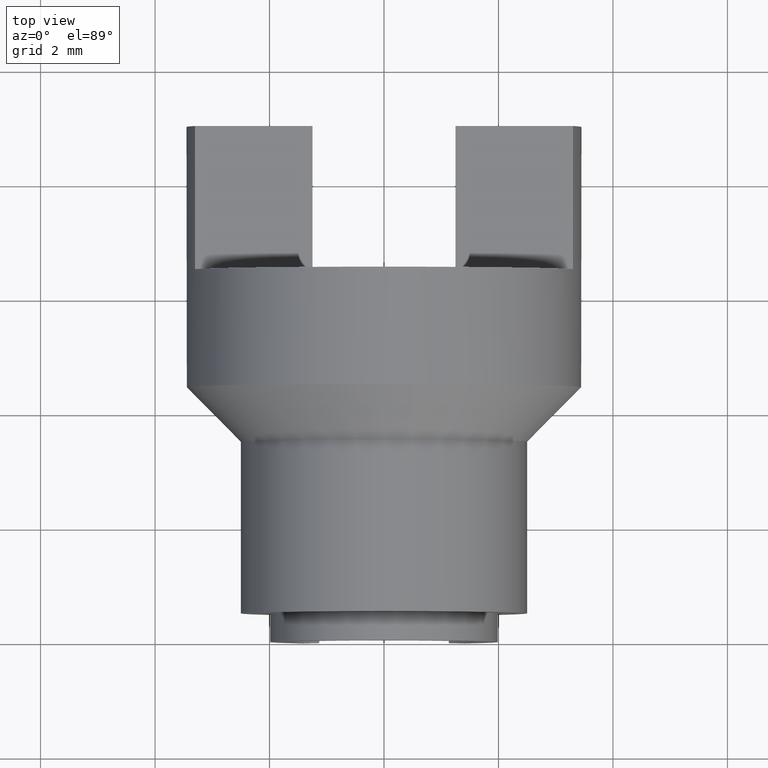
[diagram: clean part render]
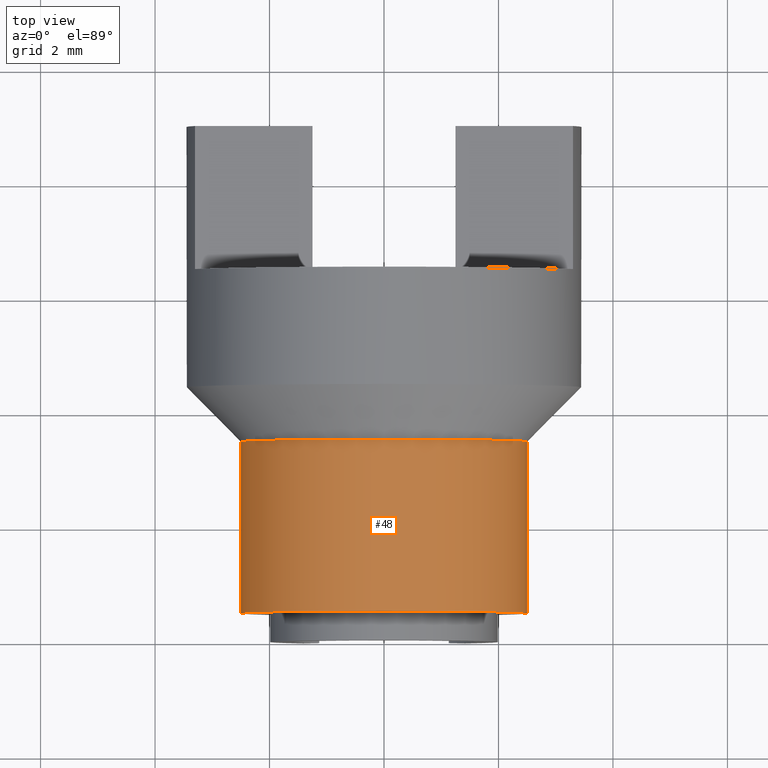
[diagram: same view with one face highlighted and labeled with its STEP entity id]
A machine part, top view. The second image highlights one B-rep face of the part: STEP entity #48.
In plain terms, the highlighted cylindrical surface (partial cylindrical patch) has radius 2.5 mm, axis along (-0, 1, 0).
Its self-contained STEP definition (entity closure, byte-faithful):
#48 = ADVANCED_FACE( '', ( #104 ), #105, .T. );
#104 = FACE_OUTER_BOUND( '', #165, .T. );
#105 = CYLINDRICAL_SURFACE( '', #166, 2.50000000000000 );
#165 = EDGE_LOOP( '', ( #235, #236, #237, #238 ) );
#166 = AXIS2_PLACEMENT_3D( '', #239, #240, #241 );
#235 = ORIENTED_EDGE( '', *, *, #394, .F. );
#236 = ORIENTED_EDGE( '', *, *, #395, .F. );
#237 = ORIENTED_EDGE( '', *, *, #396, .F. );
#238 = ORIENTED_EDGE( '', *, *, #397, .T. );
#239 = CARTESIAN_POINT( '', ( 0.000000000000000, 0.000000000000000, 0.000000000000000 ) );
#240 = DIRECTION( '', ( -0.000000000000000, 1.00000000000000, 0.000000000000000 ) );
#241 = DIRECTION( '', ( 0.000000000000000, 0.000000000000000, -1.00000000000000 ) );
#394 = EDGE_CURVE( '', #472, #473, #474, .F. );
#395 = EDGE_CURVE( '', #475, #472, #476, .T. );
#396 = EDGE_CURVE( '', #477, #475, #478, .T. );
#397 = EDGE_CURVE( '', #477, #473, #479, .T. );
#472 = VERTEX_POINT( '', #580 );
#473 = VERTEX_POINT( '', #581 );
#474 = LINE( '', #582, #583 );
#475 = VERTEX_POINT( '', #584 );
#476 = CIRCLE( '', #585, 2.50000000000000 );
#477 = VERTEX_POINT( '', #586 );
#478 = LINE( '', #587, #588 );
#479 = CIRCLE( '', #589, 2.50000000000000 );
#580 = CARTESIAN_POINT( '', ( -1.76776695296637, 0.500000000000000, -1.76776695296637 ) );
#581 = CARTESIAN_POINT( '', ( -1.76776695296637, 3.50000000000000, -1.76776695296637 ) );
#582 = CARTESIAN_POINT( '', ( -1.76776695296637, 0.000000000000000, -1.76776695296637 ) );
#583 = VECTOR( '', #688, 1000.00000000000 );
#584 = CARTESIAN_POINT( '', ( 1.76776695296587, 0.500000000000000, -1.76776695296687 ) );
#585 = AXIS2_PLACEMENT_3D( '', #689, #690, #691 );
#586 = CARTESIAN_POINT( '', ( 1.76776695296587, 3.50000000000000, -1.76776695296687 ) );
#587 = CARTESIAN_POINT( '', ( 1.76776695296587, 0.000000000000000, -1.76776695296687 ) );
#588 = VECTOR( '', #692, 1000.00000000000 );
#589 = AXIS2_PLACEMENT_3D( '', #693, #694, #695 );
#688 = DIRECTION( '', ( -0.000000000000000, -1.00000000000000, -0.000000000000000 ) );
#689 = CARTESIAN_POINT( '', ( 0.000000000000000, 0.500000000000000, 0.000000000000000 ) );
#690 = DIRECTION( '', ( 0.000000000000000, -1.00000000000000, -0.000000000000000 ) );
#691 = DIRECTION( '', ( 0.000000000000000, 0.000000000000000, -1.00000000000000 ) );
#692 = DIRECTION( '', ( -0.000000000000000, -1.00000000000000, -0.000000000000000 ) );
#693 = CARTESIAN_POINT( '', ( 0.000000000000000, 3.50000000000000, 0.000000000000000 ) );
#694 = DIRECTION( '', ( 0.000000000000000, -1.00000000000000, -0.000000000000000 ) );
#695 = DIRECTION( '', ( 0.000000000000000, 0.000000000000000, -1.00000000000000 ) );